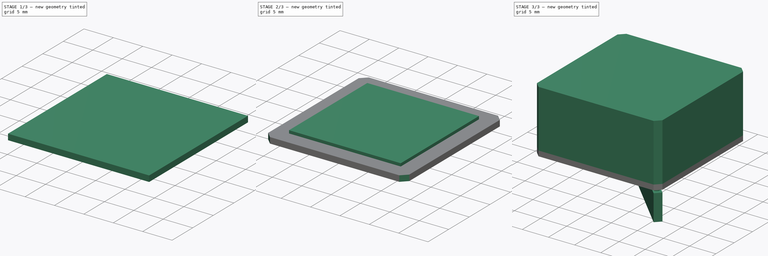
[diagram: build sequence overview — one tinted view per stage of 3, left to right]
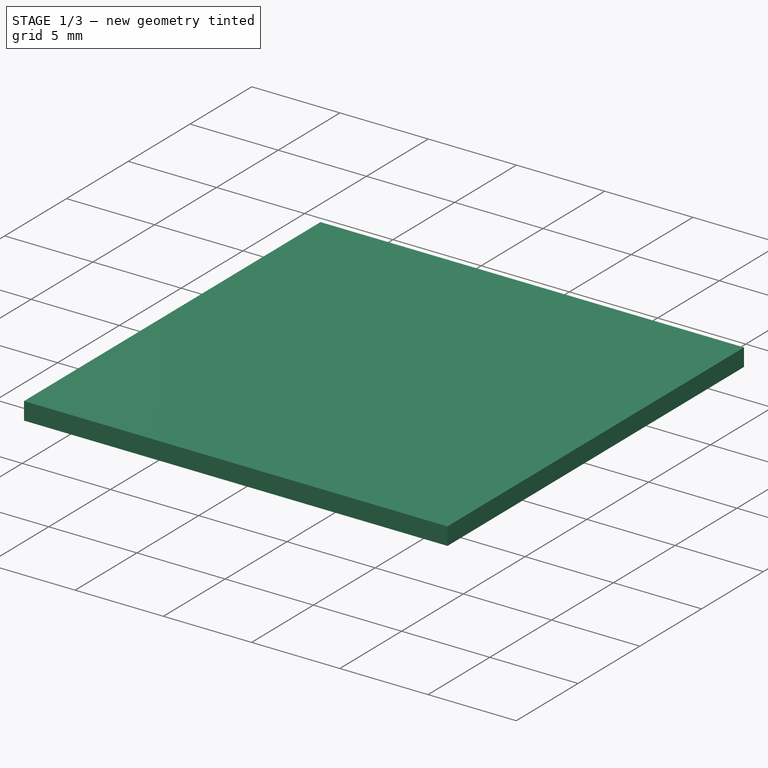
[diagram: stage 1 of 3 — iso view after this stage's code; geometry added in this stage tinted green]
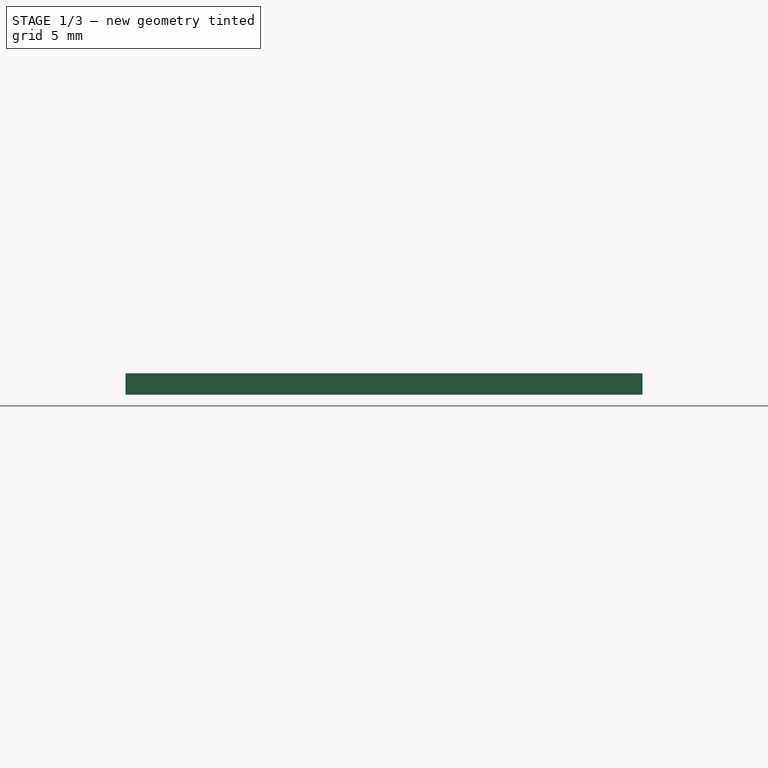
[diagram: stage 1 of 3 — front view after this stage's code; geometry added in this stage tinted green]
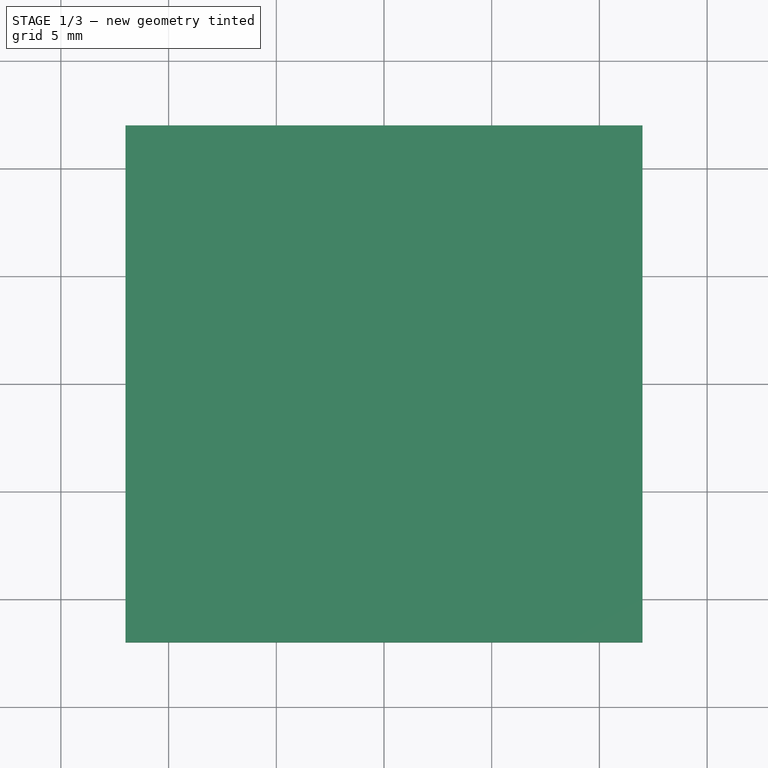
[diagram: stage 1 of 3 — top view after this stage's code; geometry added in this stage tinted green]
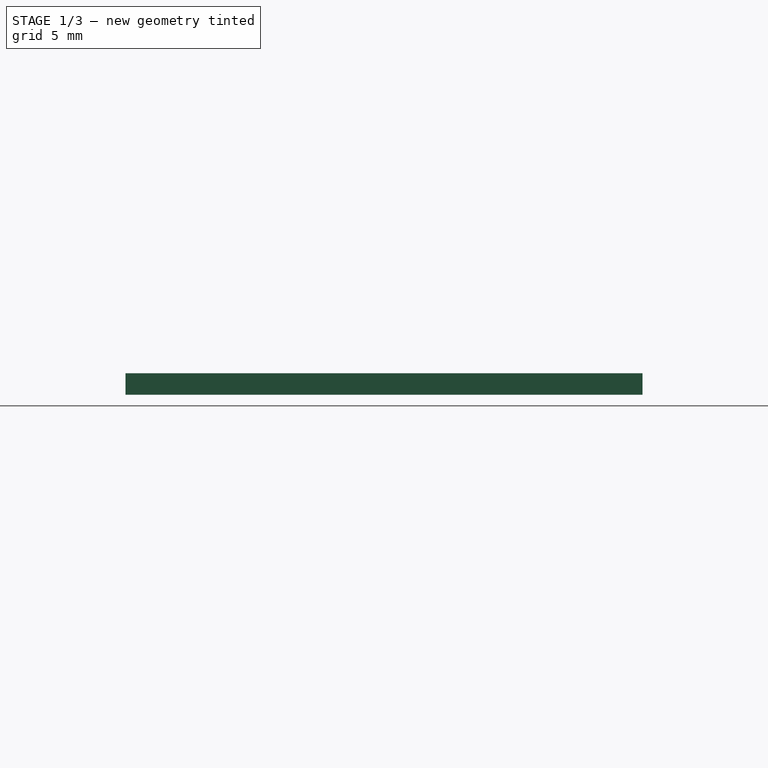
[diagram: stage 1 of 3 — right view after this stage's code; geometry added in this stage tinted green]
FCSTD DOCUMENT  (FreeCAD 0.22R37841 (Git))
Label: TestBox
License: All rights reserved
LicenseURL: http://en.wikipedia.org/wiki/All_rights_reserved
objects: Sketcher::SketchObject×6, PartDesign::Pad×6, PartDesign::Chamfer×2, PartDesign::Body×2, PartDesign::ShapeBinder×1
note: 25 computed .brp shape members not serialized (recipe doc carries the construction recipe); baked Part::Feature solids carry a one-line shape summary decoded from their .brp

FEATURE [Sketcher::SketchObject] Sketch
  AttachmentSupport = -> [XY_Plane]
  FullyConstrained = true
  MapMode = 5
  sketch-geometry (12):
    g0: LineSegment StartX=0 StartY=0 StartZ=0 EndX=0 EndY=20 EndZ=0
    g1: LineSegment StartX=0 StartY=20 StartZ=0 EndX=-20 EndY=20 EndZ=0
    g2: LineSegment StartX=-20 StartY=20 StartZ=0 EndX=-20 EndY=0 EndZ=0
    g3: LineSegment StartX=-20 StartY=0 StartZ=0 EndX=0 EndY=0 EndZ=0
    g4: LineSegment StartX=2 StartY=-2 StartZ=0 EndX=2 EndY=22 EndZ=0
    g5: LineSegment StartX=2 StartY=22 StartZ=0 EndX=-22 EndY=22 EndZ=0
    g6: LineSegment StartX=-22 StartY=22 StartZ=0 EndX=-22 EndY=-2 EndZ=0
    g7: LineSegment StartX=-22 StartY=-2 StartZ=0 EndX=2 EndY=-2 EndZ=0
    g8: LineSegment StartX=0 StartY=0 StartZ=0 EndX=2 EndY=-2 EndZ=0
    g9: LineSegment StartX=0 StartY=20 StartZ=0 EndX=2 EndY=22 EndZ=0
    g10: LineSegment StartX=-20 StartY=20 StartZ=0 EndX=-22 EndY=22 EndZ=0
    g11: LineSegment StartX=-20 StartY=0 StartZ=0 EndX=-22 EndY=-2 EndZ=0
  constraints (31):
    c: Coincident(g0,g1)
    c: Coincident(g1,g2)
    c: Coincident(g2,g3)
    c: Coincident(g3,g0)
    c: Vertical(g0)
    c: Vertical(g2)
    c: Horizontal(g1)
    c: Horizontal(g3)
    c: Coincident(g4,g5)
    c: Coincident(g5,g6)
    c: Coincident(g6,g7)
    c: Coincident(g7,g4)
    c: Vertical(g4)
    c: Vertical(g6)
    c: Horizontal(g5)
    c: Horizontal(g7)
    c: Coincident(g8,g0)
    c: Coincident(g8,g4)
    c: Coincident(g9,g1)
    c: Coincident(g9,g5)
    c: Coincident(g10,g2)
    c: Coincident(g10,g6)
    c: Coincident(g11,g3)
    c: Coincident(g11,g7)
    c: Perpendicular(g8,g9)
    c: Perpendicular(g9,g10)
    c: Perpendicular(g10,g11)
    c: Distance(g0,g2) = 20
    c: Distance(g1,g3) = 20
    c: Distance(g4,g0) = 2
    c: Coincident(g0,g-1)
FEATURE [PartDesign::Pad] Pad
  Direction = (0,0,1)
  Length = 10
  Length2 = 10
  Profile = -> Sketch
  ReferenceAxis = -> Sketch [N_Axis]
  Suppressed = false
  Type = 0
FEATURE [Sketcher::SketchObject] Sketch001
  AttachmentSupport = -> [Pad]
  ExternalGeometry = -> [Pad]
  FullyConstrained = true
  MapMode = 5
  Placement = pos=(0,0,10) rot=(0,0,1;0rad)
  sketch-geometry (4):
    g0: LineSegment StartX=-22 StartY=22 StartZ=0 EndX=-22 EndY=-2 EndZ=0
    g1: LineSegment StartX=-22 StartY=-2 StartZ=0 EndX=2 EndY=-2 EndZ=0
    g2: LineSegment StartX=2 StartY=-2 StartZ=0 EndX=2 EndY=22 EndZ=0
    g3: LineSegment StartX=2 StartY=22 StartZ=0 EndX=-22 EndY=22 EndZ=0
  constraints (10):
    c: Coincident(g0,g1)
    c: Coincident(g1,g2)
    c: Coincident(g2,g3)
    c: Coincident(g3,g0)
    c: Vertical(g0)
    c: Vertical(g2)
    c: Horizontal(g1)
    c: Horizontal(g3)
    c: Coincident(g0,g-4)
    c: Coincident(g1,g-6)
FEATURE [PartDesign::Pad] Pad001
  BaseFeature = -> Pad
  Direction = (0,0,1)
  Length = 1
  Length2 = 10
  Profile = -> Sketch001
  ReferenceAxis = -> Sketch001 [N_Axis]
  Suppressed = false
  Type = 0
FEATURE [PartDesign::ShapeBinder] ShapeBinder
  Support = -> [Pad001]
  TraceSupport = false
FEATURE [Sketcher::SketchObject] Sketch002
  AttachmentSupport = -> [ShapeBinder]
  ExternalGeometry = -> [ShapeBinder]
  FullyConstrained = true
  MapMode = 5
  Placement = pos=(0,0,0) rot=(1,0,0;3.14159rad)
  sketch-geometry (16):
    g0: LineSegment StartX=-22 StartY=2 StartZ=0 EndX=-22 EndY=-22 EndZ=0
    g1: LineSegment StartX=-22 StartY=-22 StartZ=0 EndX=2 EndY=-22 EndZ=0
    g2: LineSegment StartX=2 StartY=-22 StartZ=0 EndX=2 EndY=2 EndZ=0
    g3: LineSegment StartX=2 StartY=2 StartZ=0 EndX=-22 EndY=2 EndZ=0
    g4: LineSegment StartX=-20 StartY=0 StartZ=0 EndX=-20 EndY=-20 EndZ=0
    g5: LineSegment StartX=-20 StartY=-20 StartZ=0 EndX=0 EndY=-20 EndZ=0
    g6: LineSegment StartX=0 StartY=-20 StartZ=0 EndX=0 EndY=0 EndZ=0
    g7: LineSegment StartX=0 StartY=0 StartZ=0 EndX=-20 EndY=0 EndZ=0
    g8: LineSegment StartX=-19.5 StartY=-0.5 StartZ=0 EndX=-19.5 EndY=-19.5 EndZ=0
    g9: LineSegment StartX=-19.5 StartY=-19.5 StartZ=0 EndX=-0.5 EndY=-19.5 EndZ=0
    g10: LineSegment StartX=-0.5 StartY=-19.5 StartZ=0 EndX=-0.5 EndY=-0.5 EndZ=0
    g11: LineSegment StartX=-0.5 StartY=-0.5 StartZ=0 EndX=-19.5 EndY=-0.5 EndZ=0
    g12: LineSegment StartX=-20 StartY=0 StartZ=0 EndX=-19.5 EndY=-0.5 EndZ=0
    g13: LineSegment StartX=-20 StartY=-20 StartZ=0 EndX=-19.5 EndY=-19.5 EndZ=0
    g14: LineSegment StartX=0 StartY=-20 StartZ=0 EndX=-0.5 EndY=-19.5 EndZ=0
    g15: LineSegment StartX=0 StartY=0 StartZ=0 EndX=-0.5 EndY=-0.5 EndZ=0
  constraints (40):
    c: Coincident(g0,g1)
    c: Coincident(g1,g2)
    c: Coincident(g2,g3)
    c: Coincident(g3,g0)
    c: Vertical(g0)
    c: Vertical(g2)
    c: Horizontal(g1)
    c: Horizontal(g3)
    c: Coincident(g0,g-4)
    c: Coincident(g1,g-8)
    c: Coincident(g4,g5)
    c: Coincident(g5,g6)
    c: Coincident(g6,g7)
    c: Coincident(g7,g4)
    c: Vertical(g4)
    c: Vertical(g6)
    c: Horizontal(g5)
    c: Horizontal(g7)
    c: Coincident(g8,g9)
    c: Coincident(g9,g10)
    c: Coincident(g10,g11)
    c: Coincident(g11,g8)
    c: Vertical(g8)
    c: Vertical(g10)
    c: Horizontal(g9)
    c: Horizontal(g11)
    c: Coincident(g12,g4)
    c: Coincident(g12,g8)
    c: Coincident(g13,g5)
    c: Coincident(g13,g9)
    c: Coincident(g14,g6)
    c: Coincident(g14,g10)
    c: Coincident(g15,g7)
    c: Coincident(g15,g11)
    c: Perpendicular(g12,g13)
    c: Perpendicular(g13,g14)
    c: Perpendicular(g14,g15)
    c: Distance(g8,g4) = 0.5
    c: Coincident(g4,g-5)
    c: Coincident(g5,g-9)
FEATURE [Sketcher::SketchObject] Sketch003
  AttachmentSupport = -> [ShapeBinder]
  ExternalGeometry = -> [ShapeBinder]
  FullyConstrained = true
  MapMode = 5
  Placement = pos=(0,0,0) rot=(1,0,0;3.14159rad)
  sketch-geometry (16):
    g0: LineSegment StartX=-22 StartY=2 StartZ=0 EndX=-22 EndY=-22 EndZ=0
    g1: LineSegment StartX=-22 StartY=-22 StartZ=0 EndX=2 EndY=-22 EndZ=0
    g2: LineSegment StartX=2 StartY=-22 StartZ=0 EndX=2 EndY=2 EndZ=0
    g3: LineSegment StartX=2 StartY=2 StartZ=0 EndX=-22 EndY=2 EndZ=0
    g4: LineSegment StartX=-20 StartY=0 StartZ=0 EndX=-20 EndY=-20 EndZ=0
    g5: LineSegment StartX=-20 StartY=-20 StartZ=0 EndX=0 EndY=-20 EndZ=0
    g6: LineSegment StartX=0 StartY=-20 StartZ=0 EndX=0 EndY=0 EndZ=0
    g7: LineSegment StartX=0 StartY=0 StartZ=0 EndX=-20 EndY=0 EndZ=0
    g8: LineSegment StartX=-19.5 StartY=-0.5 StartZ=0 EndX=-19.5 EndY=-19.5 EndZ=0
    g9: LineSegment StartX=-19.5 StartY=-19.5 StartZ=0 EndX=-0.5 EndY=-19.5 EndZ=0
    g10: LineSegment StartX=-0.5 StartY=-19.5 StartZ=0 EndX=-0.5 EndY=-0.5 EndZ=0
    g11: LineSegment StartX=-0.5 StartY=-0.5 StartZ=0 EndX=-19.5 EndY=-0.5 EndZ=0
    g12: LineSegment StartX=-20 StartY=0 StartZ=0 EndX=-19.5 EndY=-0.5 EndZ=0
    g13: LineSegment StartX=-20 StartY=-20 StartZ=0 EndX=-19.5 EndY=-19.5 EndZ=0
    g14: LineSegment StartX=0 StartY=-20 StartZ=0 EndX=-0.5 EndY=-19.5 EndZ=0
    g15: LineSegment StartX=0 StartY=0 StartZ=0 EndX=-0.5 EndY=-0.5 EndZ=0
  constraints (40):
    c: Coincident(g0,g1)
    c: Coincident(g1,g2)
    c: Coincident(g2,g3)
    c: Coincident(g3,g0)
    c: Vertical(g0)
    c: Vertical(g2)
    c: Horizontal(g1)
    c: Horizontal(g3)
    c: Coincident(g0,g-4)
    c: Coincident(g1,g-8)
    c: Coincident(g4,g5)
    c: Coincident(g5,g6)
    c: Coincident(g6,g7)
    c: Coincident(g7,g4)
    c: Vertical(g4)
    c: Vertical(g6)
    c: Horizontal(g5)
    c: Horizontal(g7)
    c: Coincident(g8,g9)
    c: Coincident(g9,g10)
    c: Coincident(g10,g11)
    c: Coincident(g11,g8)
    c: Vertical(g8)
    c: Vertical(g10)
    c: Horizontal(g9)
    c: Horizontal(g11)
    c: Coincident(g12,g4)
    c: Coincident(g12,g8)
    c: Coincident(g13,g5)
    c: Coincident(g13,g9)
    c: Coincident(g14,g6)
    c: Coincident(g14,g10)
    c: Coincident(g15,g7)
    c: Coincident(g15,g11)
    c: Perpendicular(g12,g13)
    c: Perpendicular(g13,g14)
    c: Perpendicular(g14,g15)
    c: Distance(g8,g4) = 0.5
    c: Coincident(g4,g-5)
    c: Coincident(g5,g-9)
FEATURE [PartDesign::Pad] Pad002
  Direction = (0,0,-1)
  Length = 1
  Length2 = 10
  Profile = -> Sketch002
  ReferenceAxis = -> Sketch002 [N_Axis]
  Suppressed = false
  Type = 0
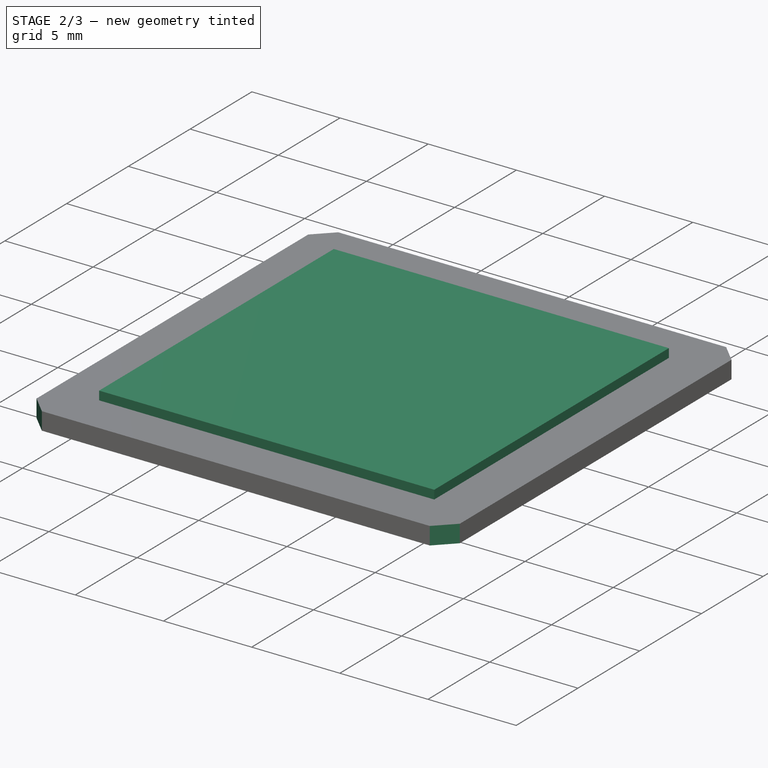
[diagram: stage 2 of 3 — iso view after this stage's code; geometry added in this stage tinted green]
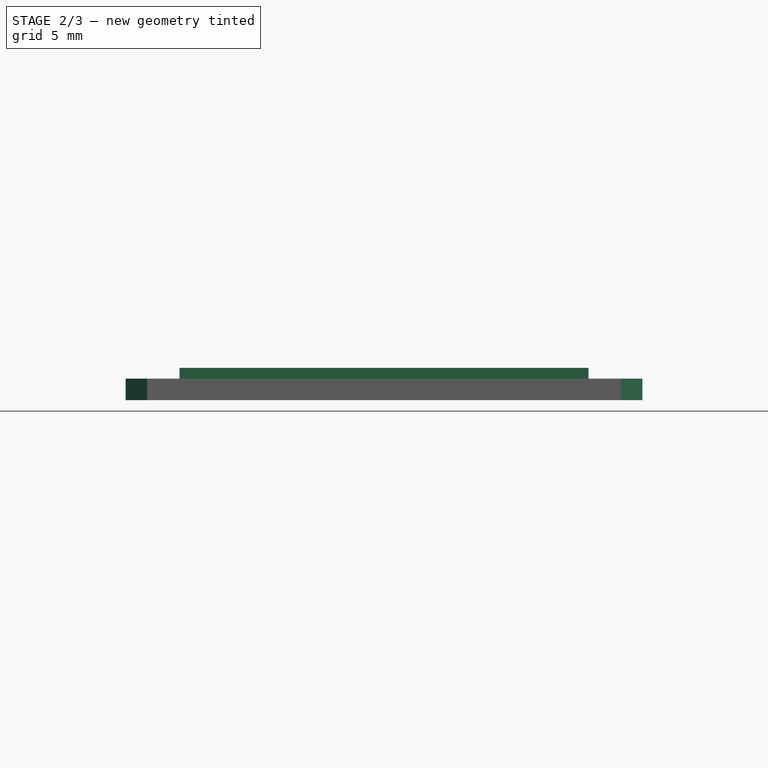
[diagram: stage 2 of 3 — front view after this stage's code; geometry added in this stage tinted green]
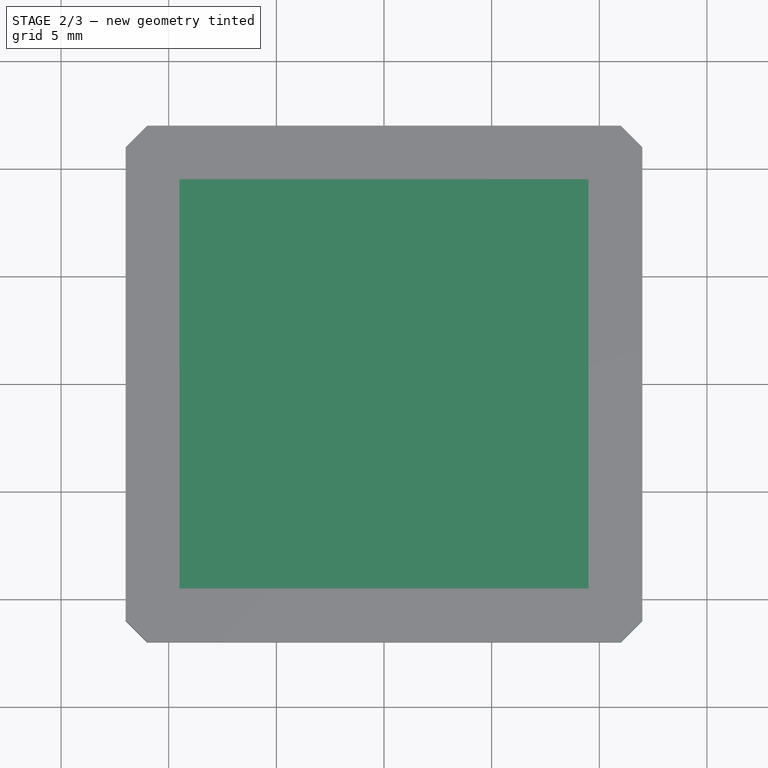
[diagram: stage 2 of 3 — top view after this stage's code; geometry added in this stage tinted green]
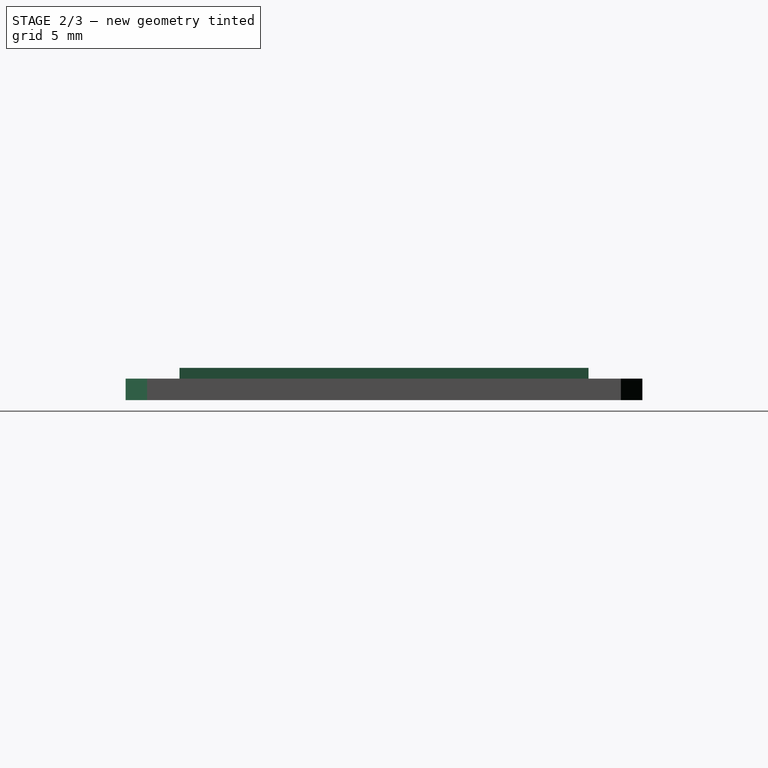
[diagram: stage 2 of 3 — right view after this stage's code; geometry added in this stage tinted green]
FEATURE [PartDesign::Pad] Pad003
  BaseFeature = -> Pad002
  Direction = (0,0,-1)
  Length = 0.5
  Length2 = 10
  Profile = -> Sketch003
  ReferenceAxis = -> Sketch003 [N_Axis]
  Reversed = true
  Suppressed = false
  Type = 0
FEATURE [PartDesign::Body] Body  label="Box"
  AllowCompound = false
  Group = -> [Sketch,Pad,Sketch001,Pad001,Chamfer]
  Origin = -> Origin
  Tip = -> Chamfer
FEATURE [PartDesign::Chamfer] Chamfer001
  Angle = 45
  Base = -> Pad003 [Edge5,Edge1,Edge2,Edge8]
  BaseFeature = -> Pad003
  ChamferType = 0
  FlipDirection = false
  Size = 1
  Size2 = 1
  SupportTransform = false
  Suppressed = false
  UseAllEdges = false
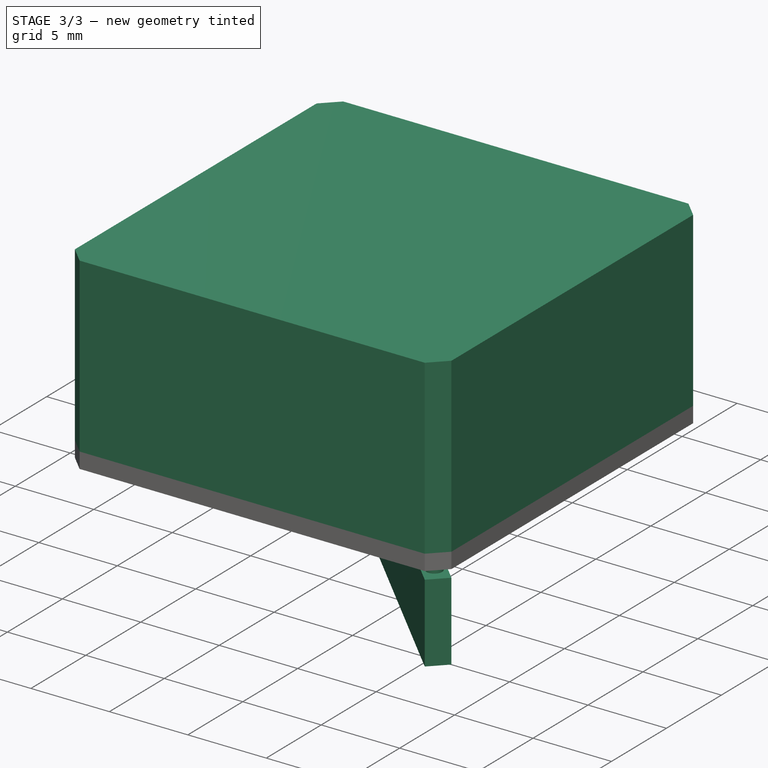
[diagram: stage 3 of 3 — iso view after this stage's code; geometry added in this stage tinted green]
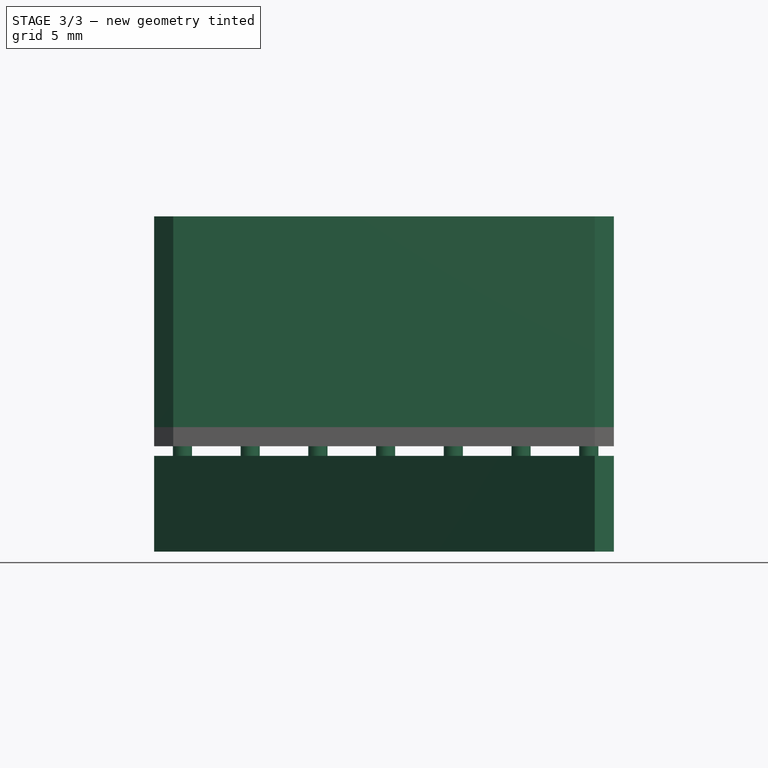
[diagram: stage 3 of 3 — front view after this stage's code; geometry added in this stage tinted green]
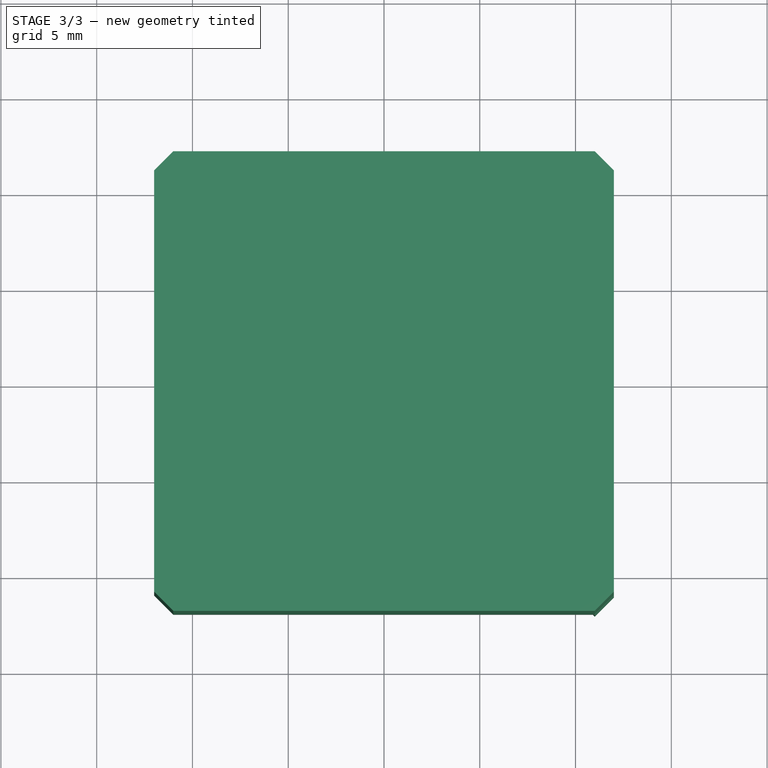
[diagram: stage 3 of 3 — top view after this stage's code; geometry added in this stage tinted green]
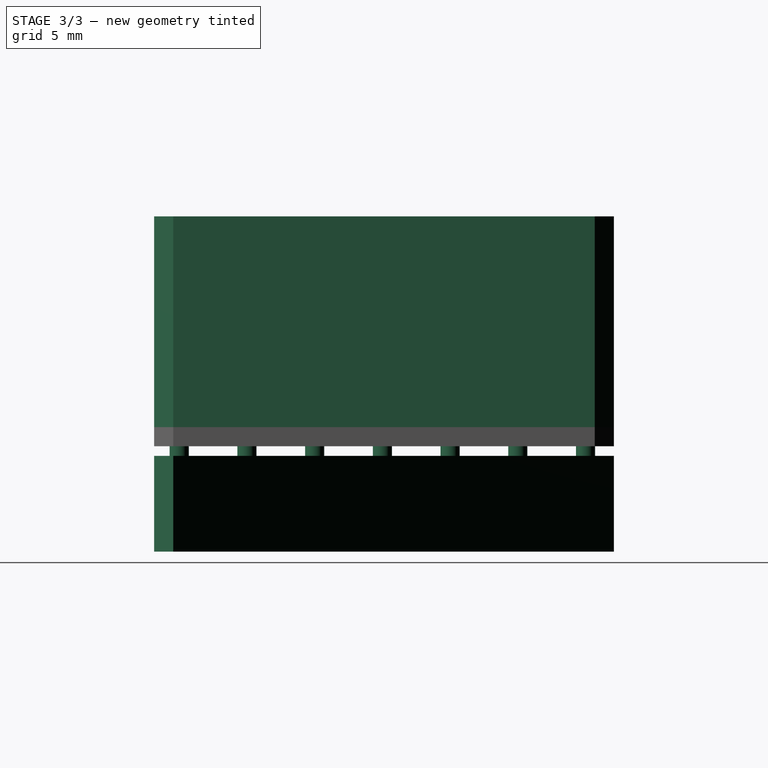
[diagram: stage 3 of 3 — right view after this stage's code; geometry added in this stage tinted green]
FEATURE [PartDesign::Chamfer] Chamfer
  Angle = 45
  Base = -> Pad001 [Edge8,Edge2,Edge1,Edge5]
  BaseFeature = -> Pad001
  ChamferType = 0
  FlipDirection = false
  Size = 1
  Size2 = 1
  SupportTransform = false
  Suppressed = false
  UseAllEdges = false
FEATURE [Sketcher::SketchObject] Sketch004
  AttachmentSupport = -> [Chamfer001]
  ExternalGeometry = -> [Chamfer001]
  FullyConstrained = false
  MapMode = 5
  Placement = pos=(0,0,-1) rot=(1,0,0;3.14159rad)
  sketch-geometry (13):
    g0: LineSegment StartX=-21 StartY=-22 StartZ=0 EndX=2 EndY=1 EndZ=0
    g1: LineSegment StartX=2 StartY=1 StartZ=0 EndX=1 EndY=2 EndZ=0
    g2: LineSegment StartX=1 StartY=2 StartZ=0 EndX=-22 EndY=-21 EndZ=0
    g3: LineSegment StartX=-22 StartY=-21 StartZ=0 EndX=-17.8381 EndY=-17.8381 EndZ=0
    g4: LineSegment StartX=-17.8381 StartY=-17.8381 StartZ=0 EndX=-21 EndY=-22 EndZ=0
    g5: LineSegment StartX=-17.8381 StartY=-17.8381 StartZ=0 EndX=1.5 EndY=1.5 EndZ=0
    g6: Circle CenterX=-20.524 CenterY=-20.524 CenterZ=0 NormalX=0 NormalY=0 NormalZ=1 AngleXU=0 Radius=0.5
    g7: Circle CenterX=-16.9885 CenterY=-16.9885 CenterZ=0 NormalX=0 NormalY=0 NormalZ=1 AngleXU=0 Radius=0.5
    g8: Circle CenterX=-13.4529 CenterY=-13.4529 CenterZ=0 NormalX=0 NormalY=0 NormalZ=1 AngleXU=0 Radius=0.5
    g9: Circle CenterX=-9.91741 CenterY=-9.91741 CenterZ=0 NormalX=0 NormalY=0 NormalZ=1 AngleXU=0 Radius=0.5
    g10: Circle CenterX=-6.38187 CenterY=-6.38187 CenterZ=0 NormalX=0 NormalY=0 NormalZ=1 AngleXU=0 Radius=0.5
    g11: Circle CenterX=-2.84634 CenterY=-2.84634 CenterZ=0 NormalX=0 NormalY=0 NormalZ=1 AngleXU=0 Radius=0.5
    g12: Circle CenterX=0.689195 CenterY=0.689195 CenterZ=0 NormalX=0 NormalY=0 NormalZ=1 AngleXU=0 Radius=0.5
  constraints (32):
    c: Coincident(g0,g-4)
    c: Coincident(g0,g-3)
    c: Coincident(g0,g1)
    c: Coincident(g1,g-3)
    c: Coincident(g1,g2)
    c: Coincident(g2,g-4)
    c: Coincident(g2,g3)
    c: Coincident(g4,g0)
    c: Coincident(g3,g4)
    c: Equal(g4,g3)
    c: Coincident(g5,g3)
    c: Symmetric(g1,g1,g5)
    c: Diameter(g6) = 1
    c: PointOnObject(g6,g5)
    c: Diameter(g7) = 1
    c: PointOnObject(g7,g5)
    c: Diameter(g8) = 1
    c: PointOnObject(g8,g5)
    c: Diameter(g9) = 1
    c: PointOnObject(g9,g5)
    c: Distance(g6,g7) = 5
    c: Distance(g7,g8) = 5
    c: Distance(g9,g8) = 5
    c: Diameter(g10) = 1
    c: PointOnObject(g10,g5)
    c: Diameter(g11) = 1
    c: PointOnObject(g11,g5)
    c: Diameter(g12) = 1
    c: PointOnObject(g12,g5)
    c: Distance(g9,g10) = 5
    c: Distance(g10,g11) = 5
    c: Distance(g11,g12) = 5
FEATURE [PartDesign::Pad] Pad004
  BaseFeature = -> Chamfer001
  Direction = (0,0,-1)
  Length = 0.5
  Length2 = 10
  Profile = -> Sketch004
  ReferenceAxis = -> Sketch004 [N_Axis]
  Suppressed = false
  Type = 0
FEATURE [Sketcher::SketchObject] Sketch005
  AttachmentSupport = -> [Pad004]
  ExternalGeometry = -> [Pad004]
  FullyConstrained = true
  MapMode = 5
  Placement = pos=(0,0,-1.5) rot=(1,0,0;3.14159rad)
  sketch-geometry (4):
    g0: LineSegment StartX=1 StartY=2 StartZ=0 EndX=-22 EndY=-21 EndZ=0
    g1: LineSegment StartX=-22 StartY=-21 StartZ=0 EndX=-21 EndY=-22 EndZ=0
    g2: LineSegment StartX=-21 StartY=-22 StartZ=0 EndX=2 EndY=1 EndZ=0
    g3: LineSegment StartX=2 StartY=1 StartZ=0 EndX=1 EndY=2 EndZ=0
  constraints (8):
    c: Coincident(g-3,g0)
    c: Coincident(g0,g-4)
    c: Coincident(g0,g1)
    c: Coincident(g1,g-4)
    c: Coincident(g1,g2)
    c: Coincident(g2,g-3)
    c: Coincident(g2,g3)
    c: Coincident(g3,g0)
FEATURE [PartDesign::Pad] Pad005
  BaseFeature = -> Pad004
  Direction = (0,0,-1)
  Length = 5
  Length2 = 10
  Profile = -> Sketch005
  ReferenceAxis = -> Sketch005 [N_Axis]
  Suppressed = false
  Type = 0
FEATURE [PartDesign::Body] Body001  label="Cap"
  AllowCompound = false
  Group = -> [ShapeBinder,Sketch002,Sketch003,Pad002,Pad003,Chamfer001,Sketch004,Pad004,Sketch005,Pad005]
  Origin = -> Origin001
  Tip = -> Pad005
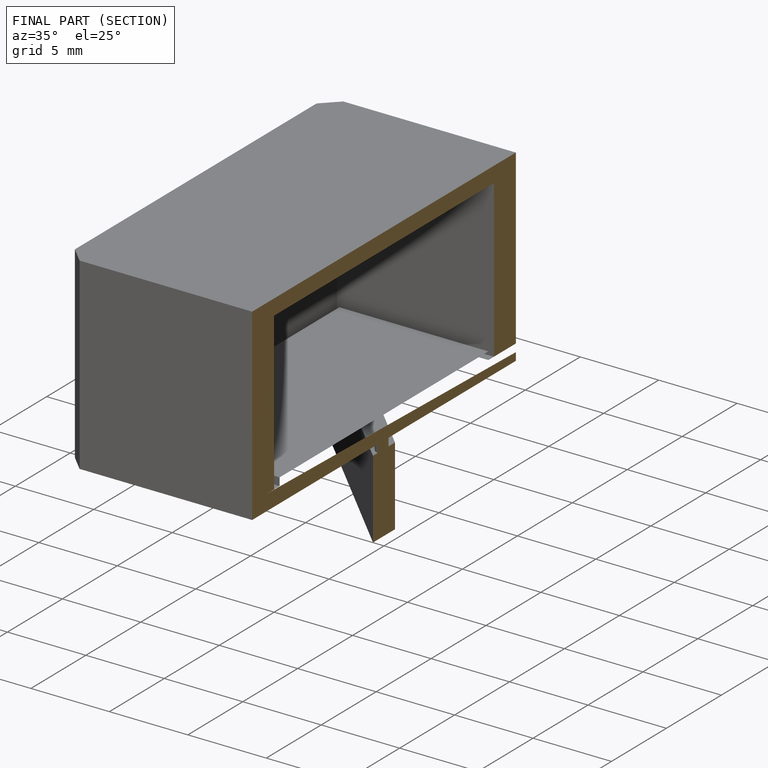
[diagram: finished part — half-section view (interior)]
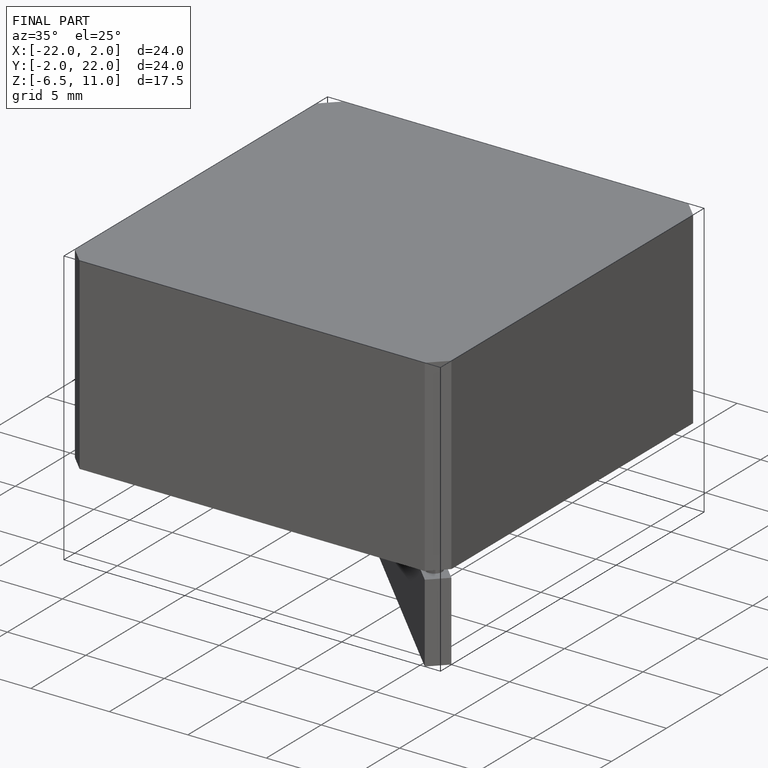
[diagram: finished part — iso view with bounding-box wireframe]
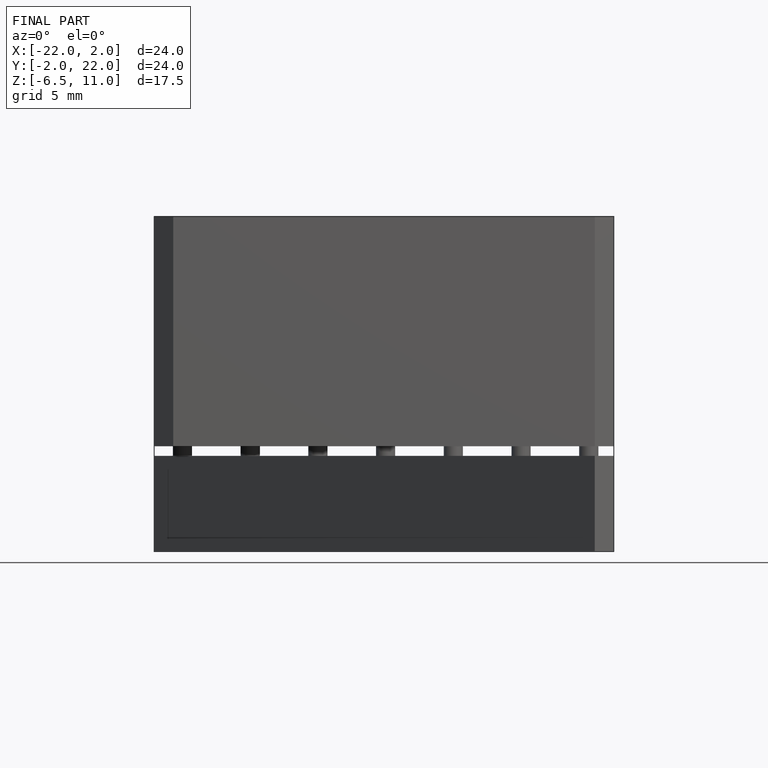
[diagram: finished part — front view with bounding-box wireframe]
